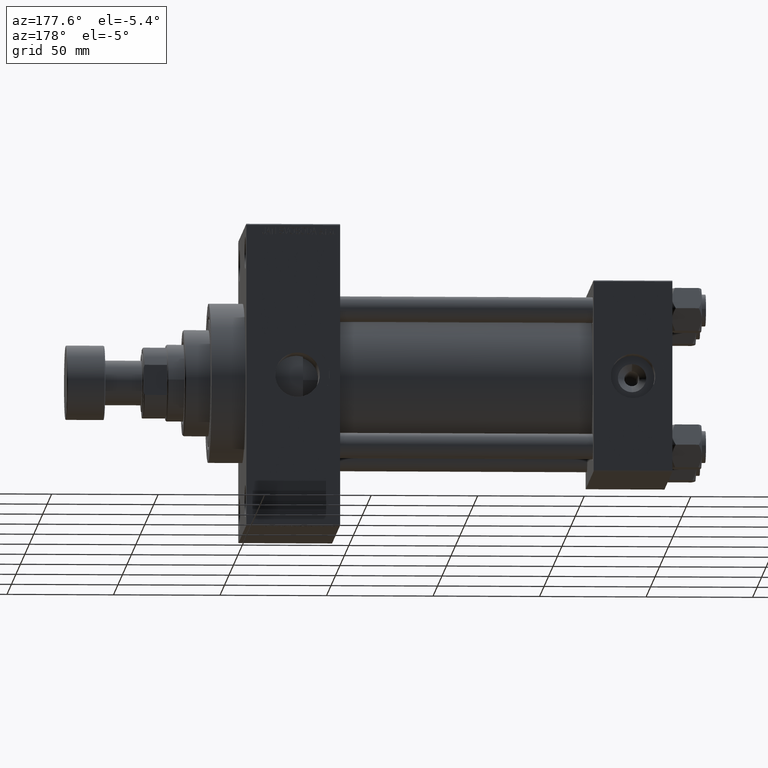
[diagram: clean part render]
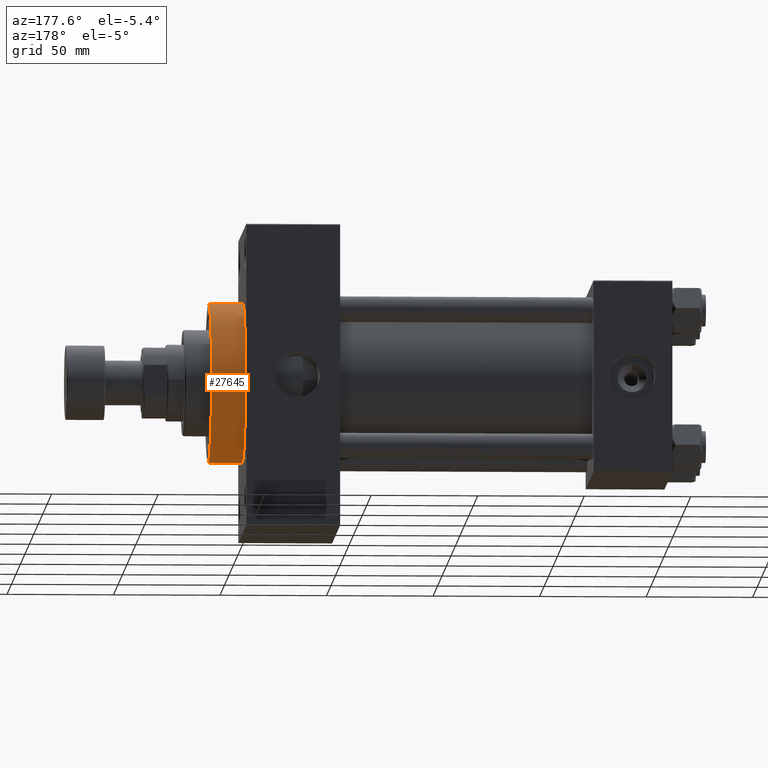
[diagram: same view with one face highlighted and labeled with its STEP entity id]
A machine part, auxiliary view. The second image highlights one B-rep face of the part: STEP entity #27645.
In plain terms, the highlighted cylindrical surface (partial cylindrical patch) has radius 37.5 mm, axis along (-1, -0, -0).
Its self-contained STEP definition (entity closure, byte-faithful):
#1387 = CARTESIAN_POINT ( 'NONE',  ( 216.0000000000000284, 4.592425496802575156E-15, -37.50000000000000711 ) ) ;
#1676 = DIRECTION ( 'NONE',  ( -1.000000000000000000, -0.000000000000000000, -0.000000000000000000 ) ) ;
#3155 = DIRECTION ( 'NONE',  ( 0.000000000000000000, 0.000000000000000000, -1.000000000000000000 ) ) ;
#3307 = EDGE_CURVE ( 'NONE', #33707, #46777, #23489, .T. ) ;
#3856 = CARTESIAN_POINT ( 'NONE',  ( 216.0000000000000284, 0.000000000000000000, 0.000000000000000000 ) ) ;
#5082 = CARTESIAN_POINT ( 'NONE',  ( 216.0000000000000284, 4.592425496802575156E-15, -37.50000000000000711 ) ) ;
#6629 = ORIENTED_EDGE ( 'NONE', *, *, #38459, .F. ) ;
#6765 = DIRECTION ( 'NONE',  ( 1.000000000000000000, 0.000000000000000000, 0.000000000000000000 ) ) ;
#7279 = DIRECTION ( 'NONE',  ( 1.000000000000000000, 0.000000000000000000, 0.000000000000000000 ) ) ;
#7671 = LINE ( 'NONE', #40850, #26835 ) ;
#8799 = VERTEX_POINT ( 'NONE', #9655 ) ;
#9487 = CARTESIAN_POINT ( 'NONE',  ( 216.0000000000000284, 0.000000000000000000, 0.000000000000000000 ) ) ;
#9655 = CARTESIAN_POINT ( 'NONE',  ( 216.0000000000000284, 0.000000000000000000, 37.50000000000000711 ) ) ;
#10928 = EDGE_CURVE ( 'NONE', #46777, #25567, #16889, .T. ) ;
#11258 = CIRCLE ( 'NONE', #32147, 37.50000000000000711 ) ;
#13109 = DIRECTION ( 'NONE',  ( 0.000000000000000000, 0.000000000000000000, 1.000000000000000000 ) ) ;
#16889 = CIRCLE ( 'NONE', #23058, 37.50000000000000711 ) ;
#16923 = EDGE_LOOP ( 'NONE', ( #6629, #43487, #20144, #17561 ) ) ;
#17561 = ORIENTED_EDGE ( 'NONE', *, *, #40989, .F. ) ;
#17869 = DIRECTION ( 'NONE',  ( -1.000000000000000000, -0.000000000000000000, -0.000000000000000000 ) ) ;
#20144 = ORIENTED_EDGE ( 'NONE', *, *, #10928, .T. ) ;
#21086 = CYLINDRICAL_SURFACE ( 'NONE', #44262, 37.50000000000000711 ) ;
#23058 = AXIS2_PLACEMENT_3D ( 'NONE', #25926, #7279, #3155 ) ;
#23489 = LINE ( 'NONE', #5082, #41351 ) ;
#25567 = VERTEX_POINT ( 'NONE', #35381 ) ;
#25926 = CARTESIAN_POINT ( 'NONE',  ( 200.0000000000000000, 0.000000000000000000, 0.000000000000000000 ) ) ;
#26835 = VECTOR ( 'NONE', #17869, 1000.000000000000000 ) ;
#27645 = ADVANCED_FACE ( 'NONE', ( #42885 ), #21086, .T. ) ;
#32147 = AXIS2_PLACEMENT_3D ( 'NONE', #3856, #6765, #43347 ) ;
#32217 = DIRECTION ( 'NONE',  ( -1.000000000000000000, -0.000000000000000000, -0.000000000000000000 ) ) ;
#33707 = VERTEX_POINT ( 'NONE', #1387 ) ;
#35381 = CARTESIAN_POINT ( 'NONE',  ( 200.0000000000000000, 0.000000000000000000, 37.50000000000000711 ) ) ;
#38459 = EDGE_CURVE ( 'NONE', #33707, #8799, #11258, .T. ) ;
#40850 = CARTESIAN_POINT ( 'NONE',  ( 216.0000000000000284, 0.000000000000000000, 37.50000000000000711 ) ) ;
#40989 = EDGE_CURVE ( 'NONE', #8799, #25567, #7671, .T. ) ;
#41351 = VECTOR ( 'NONE', #1676, 1000.000000000000000 ) ;
#42885 = FACE_OUTER_BOUND ( 'NONE', #16923, .T. ) ;
#43347 = DIRECTION ( 'NONE',  ( 0.000000000000000000, 0.000000000000000000, -1.000000000000000000 ) ) ;
#43487 = ORIENTED_EDGE ( 'NONE', *, *, #3307, .T. ) ;
#44262 = AXIS2_PLACEMENT_3D ( 'NONE', #9487, #32217, #13109 ) ;
#45649 = CARTESIAN_POINT ( 'NONE',  ( 200.0000000000000000, 4.592425496802575156E-15, -37.50000000000000711 ) ) ;
#46777 = VERTEX_POINT ( 'NONE', #45649 ) ;